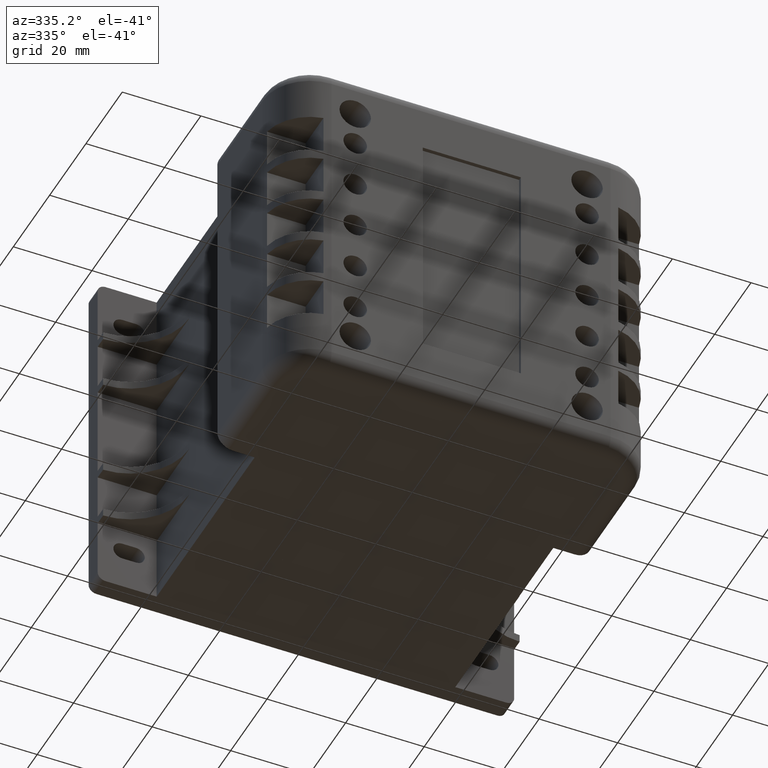
[diagram: clean part render]
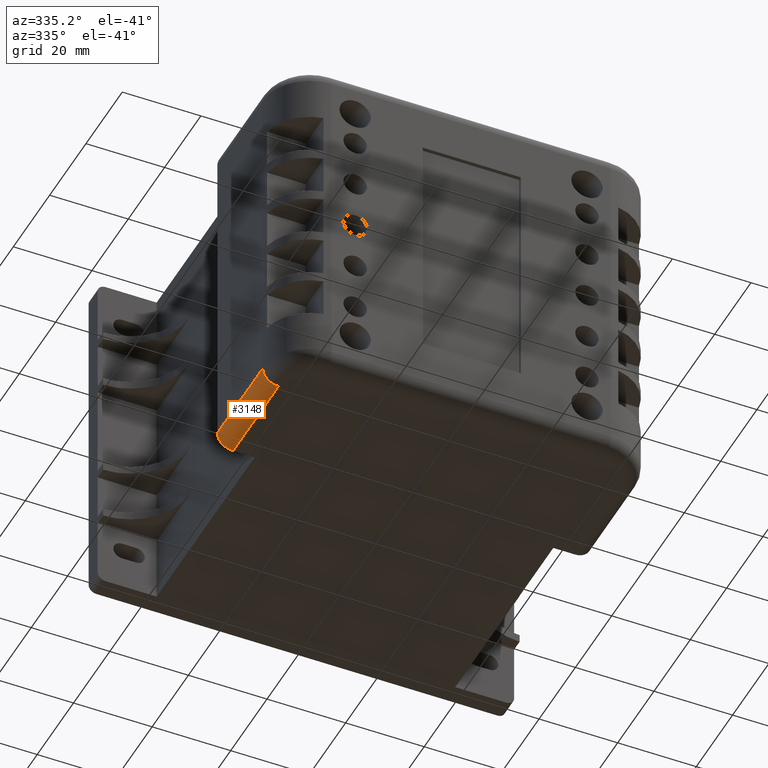
[diagram: same view with one face highlighted and labeled with its STEP entity id]
A machine part, auxiliary view. The second image highlights one B-rep face of the part: STEP entity #3148.
In plain terms, the highlighted cylindrical surface (edge-blend (fillet) strip) has radius 4 mm, axis along (-0, -1, -0).
Its self-contained STEP definition (entity closure, byte-faithful):
#41=CYLINDRICAL_SURFACE('',#3481,4.);
#71=CIRCLE('',#3415,4.);
#103=CIRCLE('',#3482,4.);
#279=FACE_OUTER_BOUND('',#469,.T.);
#469=EDGE_LOOP('',(#2106,#2107,#2108,#2109));
#684=LINE('',#4711,#988);
#711=LINE('',#4838,#1015);
#988=VECTOR('',#3790,10.);
#1015=VECTOR('',#3943,10.);
#1278=VERTEX_POINT('',#4693);
#1279=VERTEX_POINT('',#4695);
#1285=VERTEX_POINT('',#4709);
#1322=VERTEX_POINT('',#4836);
#1562=EDGE_CURVE('',#1279,#1278,#71,.T.);
#1570=EDGE_CURVE('',#1278,#1285,#684,.T.);
#1625=EDGE_CURVE('',#1285,#1322,#103,.T.);
#1626=EDGE_CURVE('',#1322,#1279,#711,.T.);
#2106=ORIENTED_EDGE('',*,*,#1562,.T.);
#2107=ORIENTED_EDGE('',*,*,#1570,.T.);
#2108=ORIENTED_EDGE('',*,*,#1625,.T.);
#2109=ORIENTED_EDGE('',*,*,#1626,.T.);
#3148=ADVANCED_FACE('',(#279),#41,.T.);
#3415=AXIS2_PLACEMENT_3D('',#4696,#3776,#3777);
#3481=AXIS2_PLACEMENT_3D('',#4835,#3939,#3940);
#3482=AXIS2_PLACEMENT_3D('',#4837,#3941,#3942);
#3776=DIRECTION('center_axis',(0.,1.,0.));
#3777=DIRECTION('ref_axis',(0.707106781186547,0.,-0.707106781186548));
#3790=DIRECTION('',(0.,1.,0.));
#3939=DIRECTION('center_axis',(0.,1.,0.));
#3940=DIRECTION('ref_axis',(0.707106781186547,0.,-0.707106781186548));
#3941=DIRECTION('center_axis',(0.,-1.,0.));
#3942=DIRECTION('ref_axis',(0.,0.,-1.));
#3943=DIRECTION('',(0.,-1.,0.));
#4693=CARTESIAN_POINT('',(-4.,0.,0.));
#4695=CARTESIAN_POINT('',(1.57898385724467E-15,0.,4.));
#4696=CARTESIAN_POINT('Origin',(-4.,0.,4.));
#4709=CARTESIAN_POINT('',(-4.,25.,0.));
#4711=CARTESIAN_POINT('',(-4.,0.,0.));
#4835=CARTESIAN_POINT('Origin',(-4.,0.,4.));
#4836=CARTESIAN_POINT('',(1.57898385724468E-15,25.,4.));
#4837=CARTESIAN_POINT('Origin',(-4.,25.,4.));
#4838=CARTESIAN_POINT('',(1.66533453693773E-15,0.,4.));